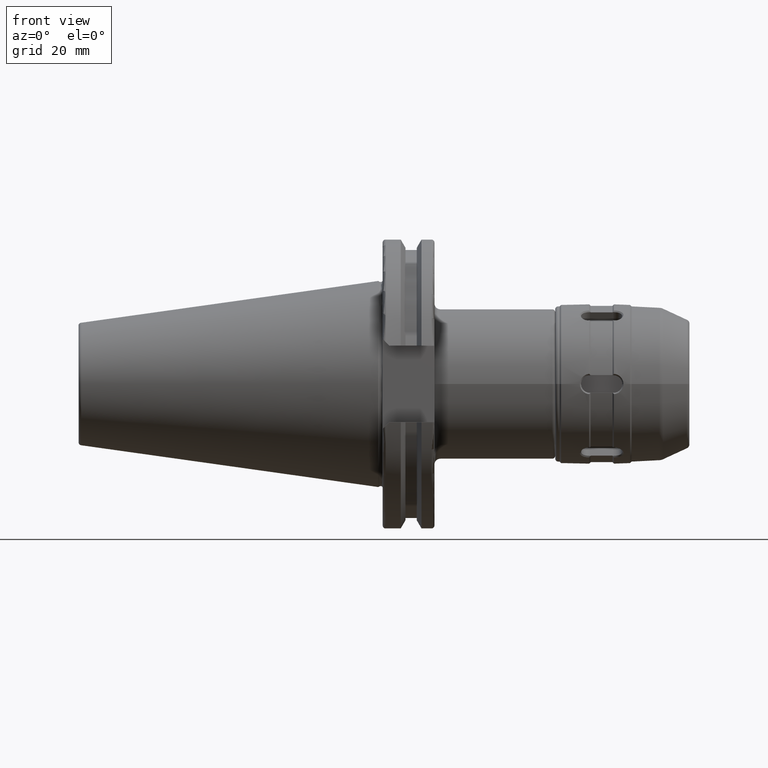
[diagram: clean part render]
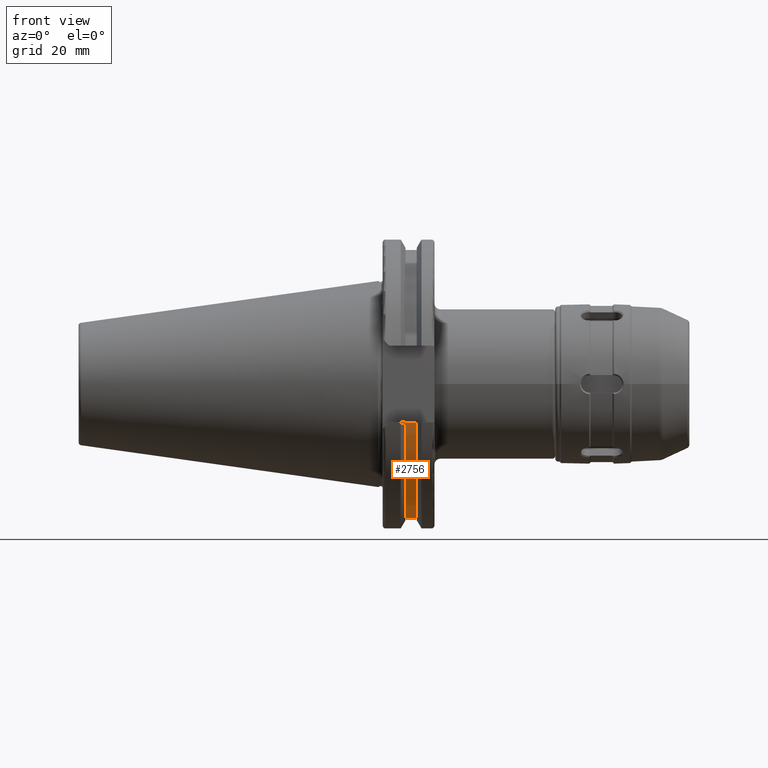
[diagram: same view with one face highlighted and labeled with its STEP entity id]
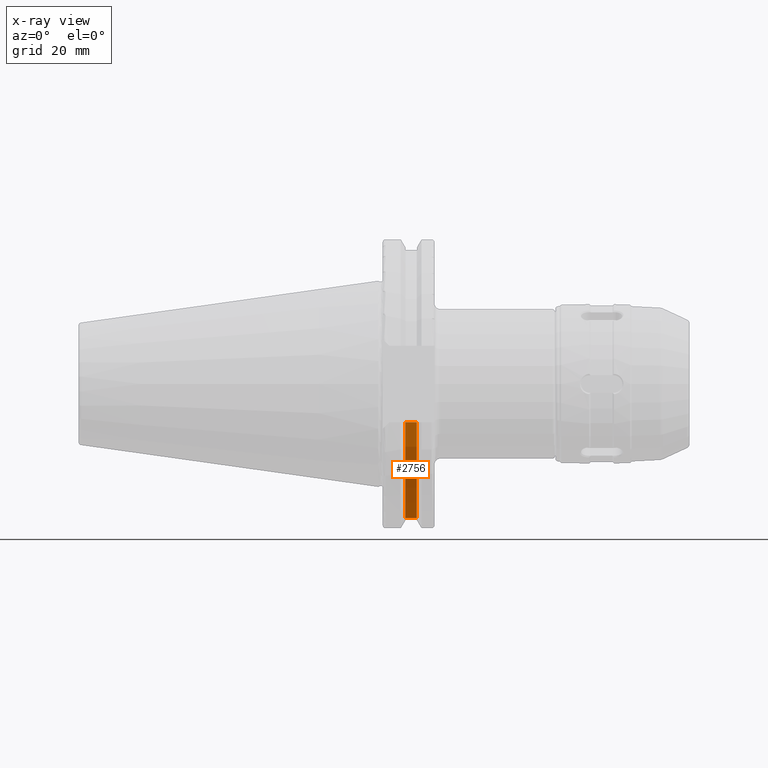
[diagram: x-ray of the same camera — body ghosted, the highlighted face saturated]
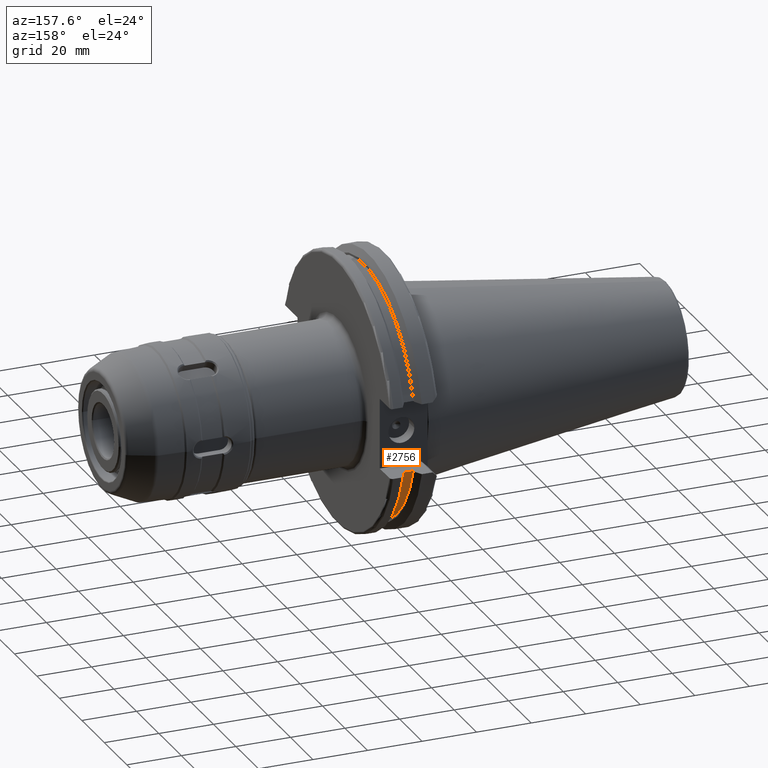
[diagram: same view with one face highlighted and labeled with its STEP entity id]
A machine part, front view. The second image highlights one B-rep face of the part: STEP entity #2756.
The next image is the same camera in x-ray: the body ghosted, the highlighted face saturated — about 0% of this face is hidden behind the body in this view.
A second angle (auxiliary view) of the same face is appended — the face is thin or edge-on in the first view.
In plain terms, the highlighted cylindrical surface (partial cylindrical patch) has radius 45.6438 mm, axis along (1, 0, 0).
Its self-contained STEP definition (entity closure, byte-faithful):
#948=DIRECTION('',(1.E0,0.E0,0.E0));
#949=VECTOR('',#948,1.51E-1);
#950=CARTESIAN_POINT('',(3.63E-1,-1.723110269252E0,-5.1E-1));
#951=LINE('',#950,#949);
#952=CARTESIAN_POINT('',(5.14E-1,0.E0,0.E0));
#953=DIRECTION('',(1.E0,0.E0,0.E0));
#954=DIRECTION('',(0.E0,-9.588816189491E-1,-2.838063439065E-1));
#955=AXIS2_PLACEMENT_3D('',#952,#953,#954);
#957=DIRECTION('',(1.E0,0.E0,0.E0));
#958=VECTOR('',#957,1.51E-1);
#959=CARTESIAN_POINT('',(3.63E-1,1.723110269252E0,-5.1E-1));
#960=LINE('',#959,#958);
#961=CARTESIAN_POINT('',(3.63E-1,0.E0,0.E0));
#962=DIRECTION('',(-1.E0,0.E0,0.E0));
#963=DIRECTION('',(0.E0,9.588816189491E-1,-2.838063439065E-1));
#964=AXIS2_PLACEMENT_3D('',#961,#962,#963);
#1146=CARTESIAN_POINT('',(3.63E-1,1.723110269252E0,-5.1E-1));
#1147=VERTEX_POINT('',#1146);
#1150=CARTESIAN_POINT('',(5.14E-1,1.723110269252E0,-5.1E-1));
#1151=VERTEX_POINT('',#1150);
#1168=CARTESIAN_POINT('',(3.63E-1,-1.723110269252E0,-5.1E-1));
#1169=VERTEX_POINT('',#1168);
#1172=CARTESIAN_POINT('',(5.14E-1,-1.723110269252E0,-5.1E-1));
#1173=VERTEX_POINT('',#1172);
#2744=CARTESIAN_POINT('',(0.E0,0.E0,0.E0));
#2745=DIRECTION('',(1.E0,0.E0,0.E0));
#2746=DIRECTION('',(0.E0,0.E0,1.E0));
#2747=AXIS2_PLACEMENT_3D('',#2744,#2745,#2746);
#2748=CYLINDRICAL_SURFACE('',#2747,1.797E0);
#2749=ORIENTED_EDGE('',*,*,#2667,.T.);
#2750=ORIENTED_EDGE('',*,*,#2726,.T.);
#2751=ORIENTED_EDGE('',*,*,#2458,.F.);
#2753=ORIENTED_EDGE('',*,*,#2752,.T.);
#2754=EDGE_LOOP('',(#2749,#2750,#2751,#2753));
#2755=FACE_OUTER_BOUND('',#2754,.F.);
#2756=ADVANCED_FACE('',(#2755),#2748,.T.);
#956=CIRCLE('',#955,1.797E0);
#965=CIRCLE('',#964,1.797E0);
#2458=EDGE_CURVE('',#1147,#1151,#960,.T.);
#2667=EDGE_CURVE('',#1169,#1173,#951,.T.);
#2726=EDGE_CURVE('',#1173,#1151,#956,.T.);
#2752=EDGE_CURVE('',#1147,#1169,#965,.T.);